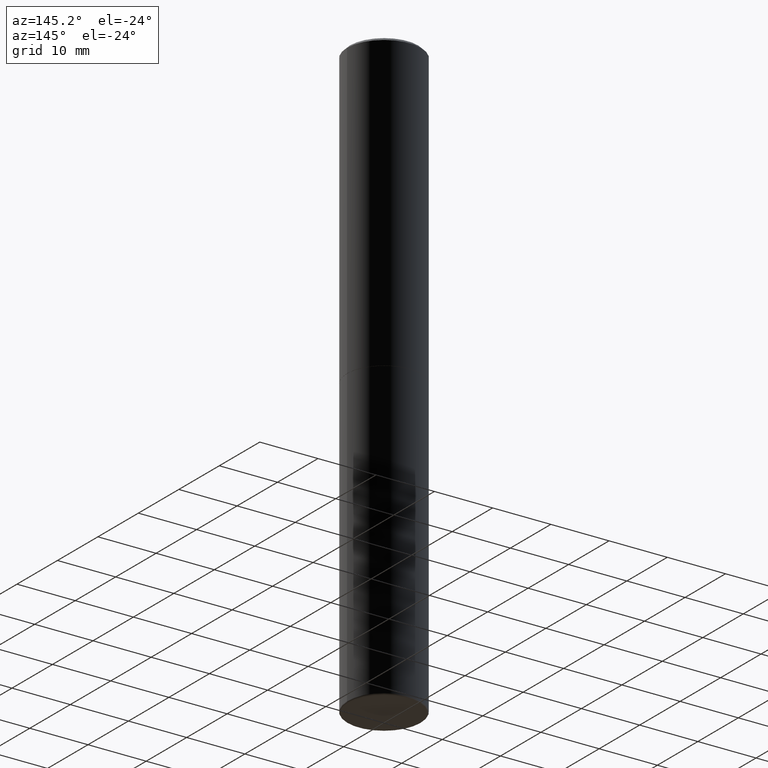
[diagram: clean part render]
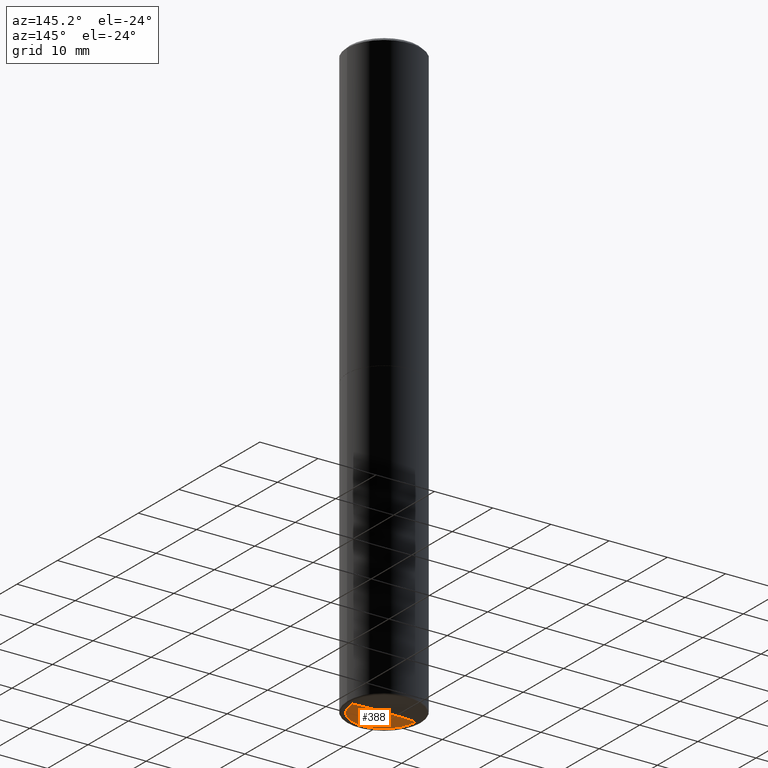
[diagram: same view with one face highlighted and labeled with its STEP entity id]
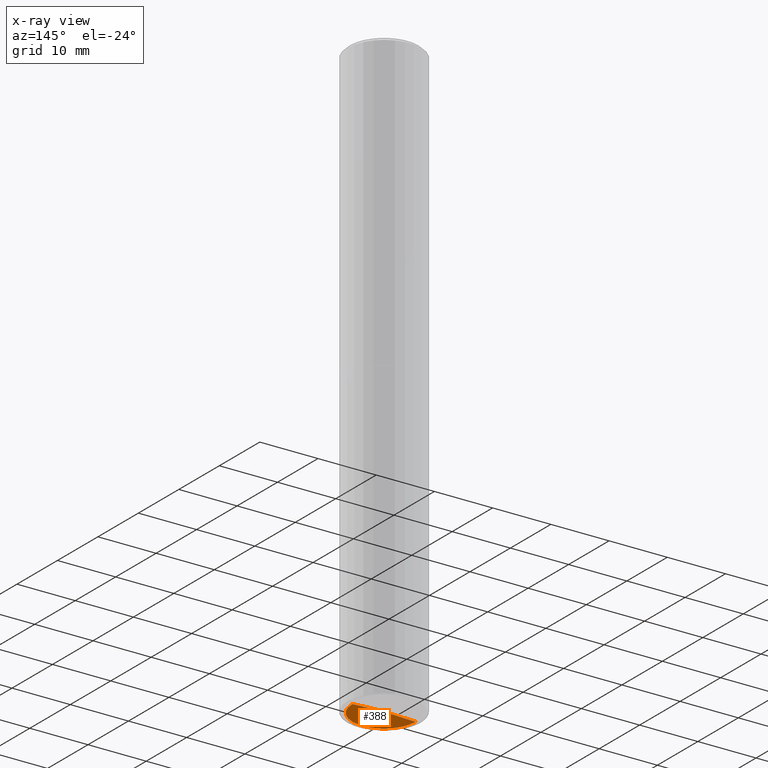
[diagram: x-ray of the same camera — body ghosted, the highlighted face saturated]
A machine part, auxiliary view. The second image highlights one B-rep face of the part: STEP entity #388.
The next image is the same camera in x-ray: the body ghosted, the highlighted face saturated — about 0% of this face is hidden behind the body in this view.
In plain terms, the highlighted conical surface has half-angle 88 deg.
Its self-contained STEP definition (entity closure, byte-faithful):
#21 = ORIENTED_EDGE ( 'NONE', *, *, #366, .F. ) ;
#26 = VERTEX_POINT ( 'NONE', #210 ) ;
#70 = VERTEX_POINT ( 'NONE', #461 ) ;
#72 = DIRECTION ( 'NONE',  ( -0.9993908270190957621, 6.856857904024556470E-15, -0.03489949670250108021 ) ) ;
#79 = CIRCLE ( 'NONE', #459, 0.2132477346450165900 ) ;
#125 = VERTEX_POINT ( 'NONE', #161 ) ;
#127 = CARTESIAN_POINT ( 'NONE',  ( 9.781306159430471629E-29, -1.396511288092772933E-14, -3.999767298070359356 ) ) ;
#143 = CONICAL_SURFACE ( 'NONE', #483, 0.2132477346450165900, 1.535889741755009918 ) ;
#150 = CARTESIAN_POINT ( 'NONE',  ( 9.781306159430471629E-29, -1.396511288092772933E-14, -3.999767298070359356 ) ) ;
#161 = CARTESIAN_POINT ( 'NONE',  ( -0.2132477346450165900, -1.247601190880043386E-14, -3.999767298070359356 ) ) ;
#183 = VECTOR ( 'NONE', #214, 39.37007874015748143 ) ;
#210 = CARTESIAN_POINT ( 'NONE',  ( 0.2132477346450165900, -1.542809853748918062E-14, -3.999767298070359356 ) ) ;
#211 = LINE ( 'NONE', #471, #183 ) ;
#213 = EDGE_CURVE ( 'NONE', #70, #26, #211, .T. ) ;
#214 = DIRECTION ( 'NONE',  ( 0.9993908270190957621, -6.978169709227541488E-15, -0.03489949670250108021 ) ) ;
#221 = FACE_OUTER_BOUND ( 'NONE', #246, .T. ) ;
#234 = EDGE_CURVE ( 'NONE', #125, #26, #79, .T. ) ;
#246 = EDGE_LOOP ( 'NONE', ( #21, #359, #373 ) ) ;
#252 = CARTESIAN_POINT ( 'NONE',  ( -0.2132477346450165900, -1.247601190880043386E-14, -3.999767298070359356 ) ) ;
#279 = VECTOR ( 'NONE', #72, 39.37007874015748143 ) ;
#283 = DIRECTION ( 'NONE',  ( -2.445468806185136597E-29, 3.491481338843145583E-15, 1.000000000000000000 ) ) ;
#359 = ORIENTED_EDGE ( 'NONE', *, *, #213, .T. ) ;
#366 = EDGE_CURVE ( 'NONE', #70, #125, #452, .T. ) ;
#373 = ORIENTED_EDGE ( 'NONE', *, *, #234, .F. ) ;
#375 = DIRECTION ( 'NONE',  ( -1.000000000000000000, 6.982962677686265922E-15, 0.000000000000000000 ) ) ;
#388 = ADVANCED_FACE ( 'NONE', ( #221 ), #143, .F. ) ;
#434 = DIRECTION ( 'NONE',  ( 1.000000000000000000, -6.982962677686265922E-15, 0.000000000000000000 ) ) ;
#452 = LINE ( 'NONE', #252, #279 ) ;
#459 = AXIS2_PLACEMENT_3D ( 'NONE', #127, #283, #434 ) ;
#461 = CARTESIAN_POINT ( 'NONE',  ( 9.761731175449715998E-29, -1.394106611403126447E-14, -3.992320523084183392 ) ) ;
#471 = CARTESIAN_POINT ( 'NONE',  ( 0.2132477346450165900, -1.542809853748918062E-14, -3.999767298070359356 ) ) ;
#483 = AXIS2_PLACEMENT_3D ( 'NONE', #150, #491, #375 ) ;
#491 = DIRECTION ( 'NONE',  ( 2.445468806185136597E-29, -3.491481338843145583E-15, -1.000000000000000000 ) ) ;